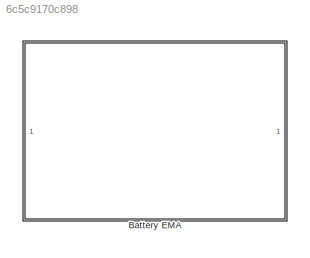
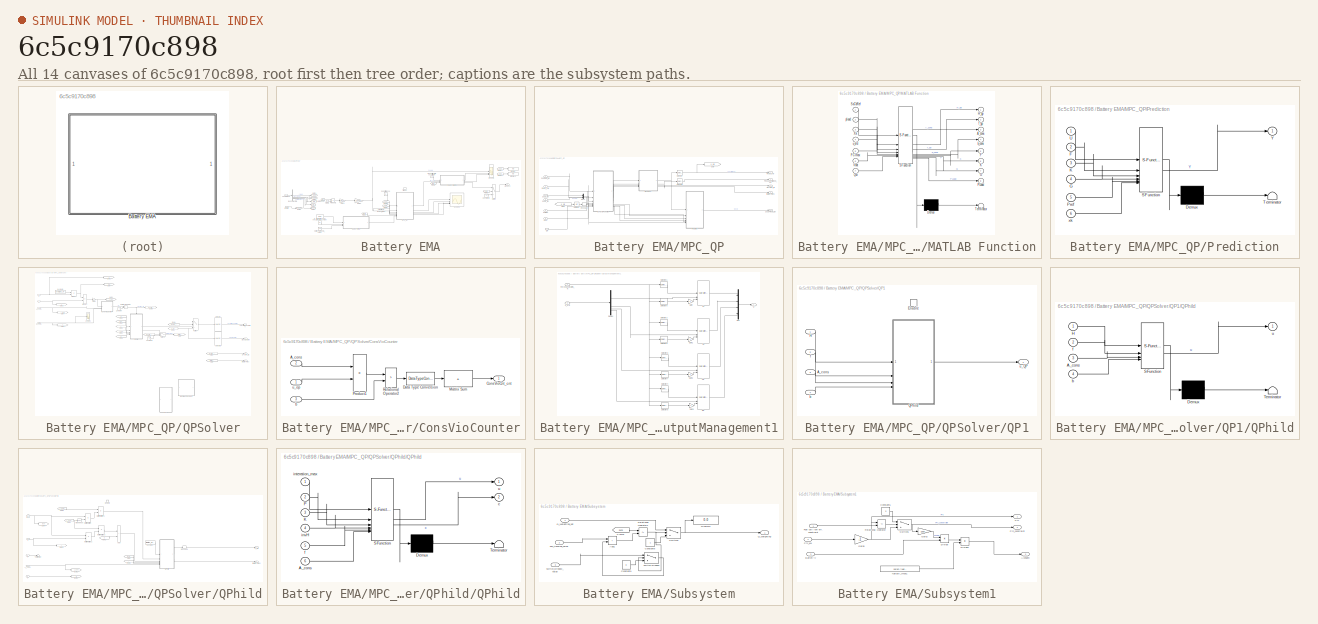
[diagram: thumbnail index - all 14 canvases of the model, root first then tree order]
MODEL slx_6c5c9170c898
KIND model
CONFIG AbsTol = auto
CONFIG EnableMultiTasking = off
CONFIG FixedStep = auto
CONFIG MaxStep = auto
CONFIG MinStep = auto
CONFIG RelTol = 1e-3
CONFIG SampleTimeConstraint = Unconstrained
CONFIG SolverName = VariableStepAuto
CONFIG StartTime = 0.0
CONFIG StopTime = 10.0
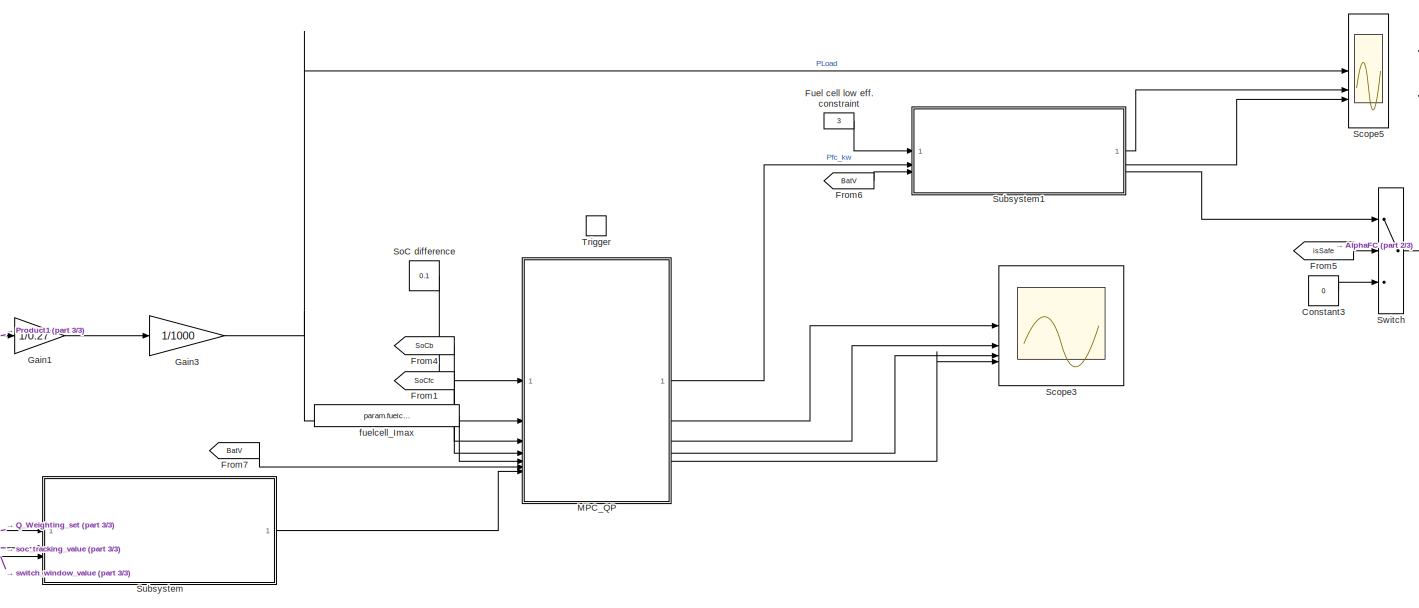
[diagram: Battery EMA - part 1/3, center side, full height]
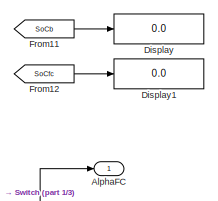
[diagram: Battery EMA - part 2/3, top right region]
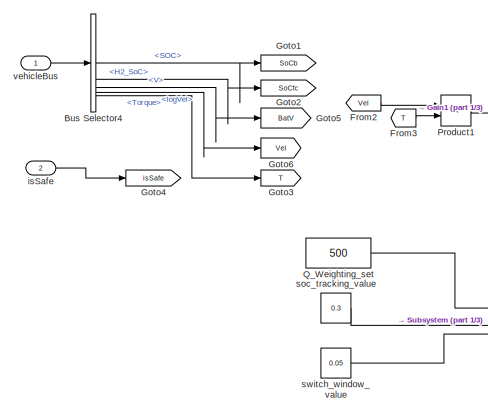
[diagram: Battery EMA - part 3/3, bottom left region]
BLOCK [SubSystem] Battery EMA
BLOCK [Outport] Battery EMA/AlphaFC
BLOCK [BusSelector] Battery EMA/Bus Selector4
  OutputSignals = batteryBus.SOC,rexBus.H2_SoC,batteryBus.V,chassisBus.logVel,chassisControlBus.Torque
BLOCK [Constant] Battery EMA/Constant3
  Value = 0
BLOCK [Display] Battery EMA/Display
  Decimation = 1
BLOCK [Display] Battery EMA/Display1
  Decimation = 1
BLOCK [From] Battery EMA/From1
  GotoTag = SoCfc
BLOCK [From] Battery EMA/From11
  GotoTag = SoCb
BLOCK [From] Battery EMA/From12
  GotoTag = SoCfc
BLOCK [From] Battery EMA/From2
  GotoTag = Vel
BLOCK [From] Battery EMA/From3
  GotoTag = T
BLOCK [From] Battery EMA/From4
  GotoTag = SoCb
BLOCK [From] Battery EMA/From5
  GotoTag = isSafe
BLOCK [From] Battery EMA/From6
  GotoTag = BatV
BLOCK [From] Battery EMA/From7
  GotoTag = BatV
BLOCK [Constant] Battery EMA/Fuel cell low eff. constraint
  Value = 3
BLOCK [Gain] Battery EMA/Gain1
  Gain = 1/0.27
BLOCK [Gain] Battery EMA/Gain3
  Gain = 1/1000
BLOCK [Goto] Battery EMA/Goto1
  GotoTag = SoCb
BLOCK [Goto] Battery EMA/Goto2
  GotoTag = SoCfc
BLOCK [Goto] Battery EMA/Goto3
  GotoTag = T
BLOCK [Goto] Battery EMA/Goto4
  GotoTag = isSafe
BLOCK [Goto] Battery EMA/Goto5
  GotoTag = BatV
BLOCK [Goto] Battery EMA/Goto6
  GotoTag = Vel
BLOCK [SubSystem] Battery EMA/MPC_QP
  AncestorBlock = SOCMPC/Subsystem
  LibrarySourceBlock = SOCMPC/Subsystem
BLOCK [Inport] Battery EMA/MPC_QP/FCImax
  Port = 5
BLOCK [From] Battery EMA/MPC_QP/From
  GotoTag = u_old
BLOCK [Goto] Battery EMA/MPC_QP/Goto
  GotoTag = u_old
BLOCK [Outport] Battery EMA/MPC_QP/IterationTimes
  Port = 4
BLOCK [SubSystem] Battery EMA/MPC_QP/MATLAB Function
  ErrorFcn = Stateflow.Translate.translate
  LibrarySourceBlock = simulink/User-Defined\nFunctions/MATLAB Function
  PermitHierarchicalResolution = ExplicitOnly
  SFBlockType = MATLAB Function
  TreatAsAtomicUnit = on
BLOCK [Demux] Battery EMA/MPC_QP/MATLAB Function/ Demux 
  Outputs = 1
BLOCK [S-Function] Battery EMA/MPC_QP/MATLAB Function/ SFunction 
  EnableBusSupport = on
  FunctionName = sf_sfun
  PortCounts = [7 9]
  SFcnIsStateOwnerBlock = off
  SFunctionDeploymentMode = off
  Tag = Stateflow S-Function 13
BLOCK [Terminator] Battery EMA/MPC_QP/MATLAB Function/ Terminator 
BLOCK [Outport] Battery EMA/MPC_QP/MATLAB Function/A_cons
  Port = 3
BLOCK [Outport] Battery EMA/MPC_QP/MATLAB Function/F
  Port = 5
BLOCK [Inport] Battery EMA/MPC_QP/MATLAB Function/FCImax
  Port = 5
BLOCK [Outport] Battery EMA/MPC_QP/MATLAB Function/G
  Port = 7
BLOCK [Outport] Battery EMA/MPC_QP/MATLAB Function/H_qp
BLOCK [Outport] Battery EMA/MPC_QP/MATLAB Function/K
  Port = 6
BLOCK [Outport] Battery EMA/MPC_QP/MATLAB Function/PLoad
  Port = 8
BLOCK [Inport] Battery EMA/MPC_QP/MATLAB Function/Qw
  Port = 7
BLOCK [Inport] Battery EMA/MPC_QP/MATLAB Function/SoCbRef
BLOCK [Inport] Battery EMA/MPC_QP/MATLAB Function/Vbat
  Port = 6
BLOCK [Inport] Battery EMA/MPC_QP/MATLAB Function/Xk
  Port = 3
BLOCK [Outport] Battery EMA/MPC_QP/MATLAB Function/b_cons
  Port = 4
BLOCK [Outport] Battery EMA/MPC_QP/MATLAB Function/f_qp
  Port = 2
BLOCK [Inport] Battery EMA/MPC_QP/MATLAB Function/pload
  Port = 2
BLOCK [Inport] Battery EMA/MPC_QP/MATLAB Function/u_old
  Port = 4
BLOCK [Mux] Battery EMA/MPC_QP/Mux1
  DisplayOption = bar
  Inputs = 2
BLOCK [Outport] Battery EMA/MPC_QP/PfcNoConstrained_kW
  Port = 2
BLOCK [Outport] Battery EMA/MPC_QP/PfcNo_kW
BLOCK [Inport] Battery EMA/MPC_QP/Pload_kW
  Port = 2
BLOCK [SubSystem] Battery EMA/MPC_QP/Prediction
  ErrorFcn = Stateflow.Translate.translate
  LibrarySourceBlock = simulink/User-Defined\nFunctions/MATLAB Function
  PermitHierarchicalResolution = ExplicitOnly
  SFBlockType = MATLAB Function
  TreatAsAtomicUnit = on
BLOCK [Demux] Battery EMA/MPC_QP/Prediction/ Demux 
  Outputs = 1
BLOCK [S-Function] Battery EMA/MPC_QP/Prediction/ SFunction 
  EnableBusSupport = on
  FunctionName = sf_sfun
  PortCounts = [6 2]
  SFcnIsStateOwnerBlock = off
  SFunctionDeploymentMode = off
  Tag = Stateflow S-Function 17
BLOCK [Terminator] Battery EMA/MPC_QP/Prediction/ Terminator 
BLOCK [Inport] Battery EMA/MPC_QP/Prediction/F
  Port = 2
BLOCK [Inport] Battery EMA/MPC_QP/Prediction/G
  Port = 4
BLOCK [Inport] Battery EMA/MPC_QP/Prediction/K
  Port = 3
BLOCK [Inport] Battery EMA/MPC_QP/Prediction/Pref
  Port = 5
BLOCK [Inport] Battery EMA/MPC_QP/Prediction/U
BLOCK [Outport] Battery EMA/MPC_QP/Prediction/Y
BLOCK [Inport] Battery EMA/MPC_QP/Prediction/xk
  Port = 6
BLOCK [Outport] Battery EMA/MPC_QP/QPActive_flg
  Port = 3
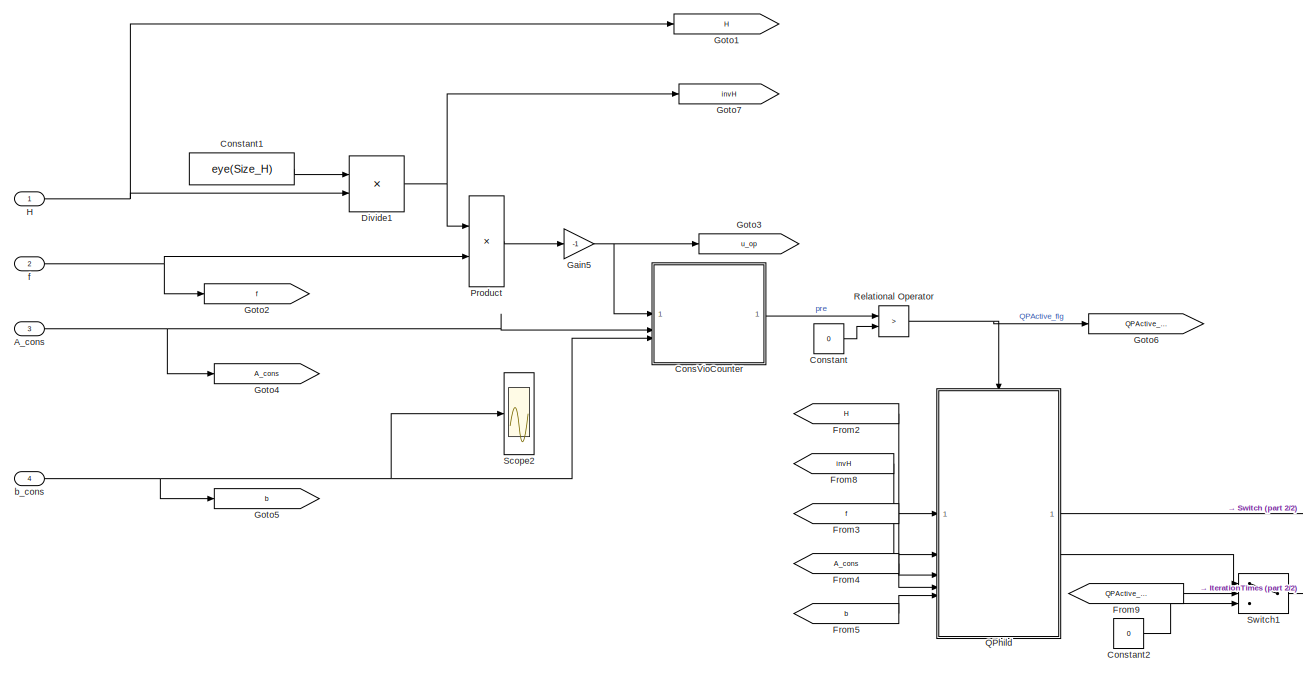
[diagram: Battery EMA/MPC_QP/QPSolver - part 1/2, top left region]
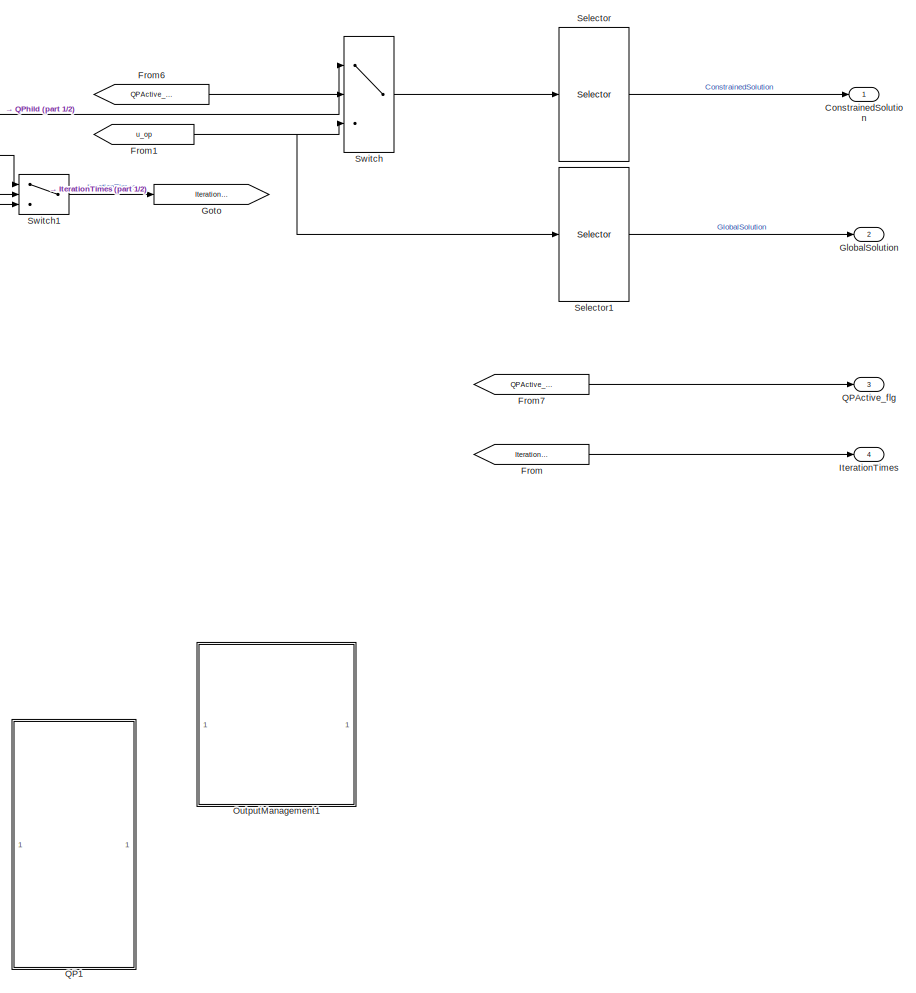
[diagram: Battery EMA/MPC_QP/QPSolver - part 2/2, middle right region]
BLOCK [SubSystem] Battery EMA/MPC_QP/QPSolver
BLOCK [Inport] Battery EMA/MPC_QP/QPSolver/A_cons
  Port = 3
BLOCK [SubSystem] Battery EMA/MPC_QP/QPSolver/ConsVioCounter
BLOCK [Inport] Battery EMA/MPC_QP/QPSolver/ConsVioCounter/A_cons
  Port = 2
BLOCK [Outport] Battery EMA/MPC_QP/QPSolver/ConsVioCounter/ConsVioCnt_cnt
BLOCK [DataTypeConversion] Battery EMA/MPC_QP/QPSolver/ConsVioCounter/Data Type Conversion
  OutDataTypeStr = uint8
  RndMeth = Floor
  SaturateOnIntegerOverflow = off
BLOCK [Sum] Battery EMA/MPC_QP/QPSolver/ConsVioCounter/Matrix Sum
  IconShape = rectangular
  Inputs = +
BLOCK [Product] Battery EMA/MPC_QP/QPSolver/ConsVioCounter/Product1
  Multiplication = Matrix(*)
BLOCK [RelationalOperator] Battery EMA/MPC_QP/QPSolver/ConsVioCounter/Relational Operator2
  InputSameDT = off
  Operator = >
  OutDataTypeStr = boolean
  RndMeth = Simplest
BLOCK [Inport] Battery EMA/MPC_QP/QPSolver/ConsVioCounter/b
  Port = 3
BLOCK [Inport] Battery EMA/MPC_QP/QPSolver/ConsVioCounter/u_op
BLOCK [Constant] Battery EMA/MPC_QP/QPSolver/Constant
  Value = 0
BLOCK [Constant] Battery EMA/MPC_QP/QPSolver/Constant1
  Value = eye(Size_H)
BLOCK [Constant] Battery EMA/MPC_QP/QPSolver/Constant2
  Value = 0
BLOCK [Outport] Battery EMA/MPC_QP/QPSolver/ConstrainedSolution
BLOCK [Product] Battery EMA/MPC_QP/QPSolver/Divide1
  Inputs = */
  Multiplication = Matrix(*)
BLOCK [From] Battery EMA/MPC_QP/QPSolver/From
  GotoTag = IterationTimes
BLOCK [From] Battery EMA/MPC_QP/QPSolver/From1
  GotoTag = u_op
BLOCK [From] Battery EMA/MPC_QP/QPSolver/From2
  GotoTag = H
BLOCK [From] Battery EMA/MPC_QP/QPSolver/From3
  GotoTag = f
BLOCK [From] Battery EMA/MPC_QP/QPSolver/From4
  GotoTag = A_cons
BLOCK [From] Battery EMA/MPC_QP/QPSolver/From5
  GotoTag = b
BLOCK [From] Battery EMA/MPC_QP/QPSolver/From6
  GotoTag = QPActive_flg
BLOCK [From] Battery EMA/MPC_QP/QPSolver/From7
  GotoTag = QPActive_flg
BLOCK [From] Battery EMA/MPC_QP/QPSolver/From8
  GotoTag = invH
BLOCK [From] Battery EMA/MPC_QP/QPSolver/From9
  GotoTag = QPActive_flg
BLOCK [Gain] Battery EMA/MPC_QP/QPSolver/Gain5
  Gain = -1
BLOCK [Outport] Battery EMA/MPC_QP/QPSolver/GlobalSolution
  Port = 2
BLOCK [Goto] Battery EMA/MPC_QP/QPSolver/Goto
  GotoTag = IterationTimes
BLOCK [Goto] Battery EMA/MPC_QP/QPSolver/Goto1
  GotoTag = H
BLOCK [Goto] Battery EMA/MPC_QP/QPSolver/Goto2
  GotoTag = f
BLOCK [Goto] Battery EMA/MPC_QP/QPSolver/Goto3
  GotoTag = u_op
BLOCK [Goto] Battery EMA/MPC_QP/QPSolver/Goto4
  GotoTag = A_cons
BLOCK [Goto] Battery EMA/MPC_QP/QPSolver/Goto5
  GotoTag = b
BLOCK [Goto] Battery EMA/MPC_QP/QPSolver/Goto6
  GotoTag = QPActive_flg
BLOCK [Goto] Battery EMA/MPC_QP/QPSolver/Goto7
  GotoTag = invH
BLOCK [Inport] Battery EMA/MPC_QP/QPSolver/H
BLOCK [Outport] Battery EMA/MPC_QP/QPSolver/IterationTimes
  Port = 4
BLOCK [SubSystem] Battery EMA/MPC_QP/QPSolver/OutputManagement1
  Commented = on
BLOCK [Demux] Battery EMA/MPC_QP/QPSolver/OutputManagement1/Demux
BLOCK [Reference] Battery EMA/MPC_QP/QPSolver/OutputManagement1/FL  REF=simulink/Discontinuities/Saturation
Dynamic
  SourceBlock = simulink/Discontinuities/Saturation\nDynamic
  SourceType = Saturation Dynamic
BLOCK [Reference] Battery EMA/MPC_QP/QPSolver/OutputManagement1/FR  REF=simulink/Discontinuities/Saturation
Dynamic
  SourceBlock = simulink/Discontinuities/Saturation\nDynamic
  SourceType = Saturation Dynamic
BLOCK [Inport] Battery EMA/MPC_QP/QPSolver/OutputManagement1/ForceConstraints_N
BLOCK [Gain] Battery EMA/MPC_QP/QPSolver/OutputManagement1/Gain
  Gain = -1
BLOCK [Gain] Battery EMA/MPC_QP/QPSolver/OutputManagement1/Gain1
  Gain = -1
BLOCK [Gain] Battery EMA/MPC_QP/QPSolver/OutputManagement1/Gain2
  Gain = -1
BLOCK [Gain] Battery EMA/MPC_QP/QPSolver/OutputManagement1/Gain3
  Gain = -1
BLOCK [Mux] Battery EMA/MPC_QP/QPSolver/OutputManagement1/Mux
  DisplayOption = bar
  Inputs = [1 1 1 1]
BLOCK [Reference] Battery EMA/MPC_QP/QPSolver/OutputManagement1/RL  REF=simulink/Discontinuities/Saturation
Dynamic
  SourceBlock = simulink/Discontinuities/Saturation\nDynamic
  SourceType = Saturation Dynamic
BLOCK [Reference] Battery EMA/MPC_QP/QPSolver/OutputManagement1/RR  REF=simulink/Discontinuities/Saturation
Dynamic
  SourceBlock = simulink/Discontinuities/Saturation\nDynamic
  SourceType = Saturation Dynamic
BLOCK [Selector] Battery EMA/MPC_QP/QPSolver/OutputManagement1/Selector1
  IndexOptions = Index vector (dialog)
  Indices = [5]
  InputPortWidth = 8
  OutputSizes = 1
BLOCK [Selector] Battery EMA/MPC_QP/QPSolver/OutputManagement1/Selector2
  IndexOptions = Index vector (dialog)
  Indices = 6
  InputPortWidth = 8
  OutputSizes = 1
BLOCK [Selector] Battery EMA/MPC_QP/QPSolver/OutputManagement1/Selector3
  IndexOptions = Index vector (dialog)
  Indices = 7
  InputPortWidth = 8
  OutputSizes = 1
BLOCK [Selector] Battery EMA/MPC_QP/QPSolver/OutputManagement1/Selector4
  IndexOptions = Index vector (dialog)
  Indices = 8
  InputPortWidth = 8
  OutputSizes = 1
BLOCK [Selector] Battery EMA/MPC_QP/QPSolver/OutputManagement1/Selector5
  IndexOptions = Index vector (dialog)
  Indices = 1
  InputPortWidth = 8
  OutputSizes = 1
BLOCK [Selector] Battery EMA/MPC_QP/QPSolver/OutputManagement1/Selector6
  IndexOptions = Index vector (dialog)
  Indices = 2
  InputPortWidth = 8
  OutputSizes = 1
BLOCK [Selector] Battery EMA/MPC_QP/QPSolver/OutputManagement1/Selector7
  IndexOptions = Index vector (dialog)
  Indices = 3
  InputPortWidth = 8
  OutputSizes = 1
BLOCK [Selector] Battery EMA/MPC_QP/QPSolver/OutputManagement1/Selector8
  IndexOptions = Index vector (dialog)
  Indices = 4
  InputPortWidth = 8
  OutputSizes = 1
BLOCK [Outport] Battery EMA/MPC_QP/QPSolver/OutputManagement1/u
BLOCK [Inport] Battery EMA/MPC_QP/QPSolver/OutputManagement1/u_pre
  Port = 2
BLOCK [Product] Battery EMA/MPC_QP/QPSolver/Product
  Multiplication = Matrix(*)
BLOCK [SubSystem] Battery EMA/MPC_QP/QPSolver/QP1
  Commented = on
BLOCK [Inport] Battery EMA/MPC_QP/QPSolver/QP1/A_cons
  Port = 3
BLOCK [EnablePort] Battery EMA/MPC_QP/QPSolver/QP1/Enable
BLOCK [Inport] Battery EMA/MPC_QP/QPSolver/QP1/H
BLOCK [SubSystem] Battery EMA/MPC_QP/QPSolver/QP1/QPhild
  ErrorFcn = Stateflow.Translate.translate
  PermitHierarchicalResolution = ExplicitOnly
  SFBlockType = MATLAB Function
  TreatAsAtomicUnit = on
BLOCK [Demux] Battery EMA/MPC_QP/QPSolver/QP1/QPhild/ Demux 
  Outputs = 1
BLOCK [S-Function] Battery EMA/MPC_QP/QPSolver/QP1/QPhild/ SFunction 
  EnableBusSupport = on
  FunctionName = sf_sfun
  PortCounts = [4 2]
  SFcnIsStateOwnerBlock = off
  SFunctionDeploymentMode = off
  Tag = Stateflow S-Function 14
BLOCK [Terminator] Battery EMA/MPC_QP/QPSolver/QP1/QPhild/ Terminator 
BLOCK [Inport] Battery EMA/MPC_QP/QPSolver/QP1/QPhild/A_cons
  Port = 3
BLOCK [Inport] Battery EMA/MPC_QP/QPSolver/QP1/QPhild/H
BLOCK [Inport] Battery EMA/MPC_QP/QPSolver/QP1/QPhild/b
  Port = 4
BLOCK [Inport] Battery EMA/MPC_QP/QPSolver/QP1/QPhild/f
  Port = 2
BLOCK [Outport] Battery EMA/MPC_QP/QPSolver/QP1/QPhild/u
BLOCK [Inport] Battery EMA/MPC_QP/QPSolver/QP1/b
  Port = 4
BLOCK [Inport] Battery EMA/MPC_QP/QPSolver/QP1/f
  Port = 2
BLOCK [Outport] Battery EMA/MPC_QP/QPSolver/QP1/u_QP
BLOCK [Outport] Battery EMA/MPC_QP/QPSolver/QPActive_flg
  Port = 3
BLOCK [SubSystem] Battery EMA/MPC_QP/QPSolver/QPhild
BLOCK [Inport] Battery EMA/MPC_QP/QPSolver/QPhild/A_cons
  Port = 4
BLOCK [Sum] Battery EMA/MPC_QP/QPSolver/QPhild/Add
  IconShape = rectangular
BLOCK [Constant] Battery EMA/MPC_QP/QPSolver/QPhild/Constant
  Value = iteration_max
BLOCK [EnablePort] Battery EMA/MPC_QP/QPSolver/QPhild/Enable
BLOCK [From] Battery EMA/MPC_QP/QPSolver/QPhild/From
  GotoTag = invH
BLOCK [From] Battery EMA/MPC_QP/QPSolver/QPhild/From1
  GotoTag = A_cons
BLOCK [From] Battery EMA/MPC_QP/QPSolver/QPhild/From2
  GotoTag = A_cons
BLOCK [From] Battery EMA/MPC_QP/QPSolver/QPhild/From3
  GotoTag = f
BLOCK [From] Battery EMA/MPC_QP/QPSolver/QPhild/From6
  GotoTag = b
BLOCK [Goto] Battery EMA/MPC_QP/QPSolver/QPhild/Goto1
  GotoTag = f
BLOCK [Goto] Battery EMA/MPC_QP/QPSolver/QPhild/Goto2
  GotoTag = A_cons
BLOCK [Goto] Battery EMA/MPC_QP/QPSolver/QPhild/Goto3
  GotoTag = b
BLOCK [Goto] Battery EMA/MPC_QP/QPSolver/QPhild/Goto4
  GotoTag = invH
BLOCK [Inport] Battery EMA/MPC_QP/QPSolver/QPhild/H
  PortDimensions = [Size_H,Size_H]
BLOCK [Outport] Battery EMA/MPC_QP/QPSolver/QPhild/IterationTimes
  Port = 2
  PortDimensions = [1,1]
BLOCK [Product] Battery EMA/MPC_QP/QPSolver/QPhild/Matrix Multiply
  Multiplication = Matrix(*)
BLOCK [Product] Battery EMA/MPC_QP/QPSolver/QPhild/Matrix Multiply1
  Multiplication = Matrix(*)
BLOCK [Product] Battery EMA/MPC_QP/QPSolver/QPhild/Matrix Multiply2
  Multiplication = Matrix(*)
BLOCK [Product] Battery EMA/MPC_QP/QPSolver/QPhild/Matrix Multiply3
  Multiplication = Matrix(*)
BLOCK [SubSystem] Battery EMA/MPC_QP/QPSolver/QPhild/QPhild
  ErrorFcn = Stateflow.Translate.translate
  PermitHierarchicalResolution = ExplicitOnly
  SFBlockType = MATLAB Function
  TreatAsAtomicUnit = on
BLOCK [Demux] Battery EMA/MPC_QP/QPSolver/QPhild/QPhild/ Demux 
  Outputs = 1
BLOCK [S-Function] Battery EMA/MPC_QP/QPSolver/QPhild/QPhild/ SFunction 
  EnableBusSupport = on
  FunctionName = sf_sfun
  PortCounts = [6 3]
  SFcnIsStateOwnerBlock = off
  SFunctionDeploymentMode = off
  Tag = Stateflow S-Function 15
BLOCK [Terminator] Battery EMA/MPC_QP/QPSolver/QPhild/QPhild/ Terminator 
BLOCK [Inport] Battery EMA/MPC_QP/QPSolver/QPhild/QPhild/A_cons
  Port = 6
BLOCK [Inport] Battery EMA/MPC_QP/QPSolver/QPhild/QPhild/K
  Port = 3
BLOCK [Inport] Battery EMA/MPC_QP/QPSolver/QPhild/QPhild/P
  Port = 2
BLOCK [Outport] Battery EMA/MPC_QP/QPSolver/QPhild/QPhild/c
  Port = 2
BLOCK [Inport] Battery EMA/MPC_QP/QPSolver/QPhild/QPhild/f
  Port = 5
BLOCK [Inport] Battery EMA/MPC_QP/QPSolver/QPhild/QPhild/interation_max
BLOCK [Inport] Battery EMA/MPC_QP/QPSolver/QPhild/QPhild/invH
  Port = 4
BLOCK [Outport] Battery EMA/MPC_QP/QPSolver/QPhild/QPhild/u
BLOCK [Reshape] Battery EMA/MPC_QP/QPSolver/QPhild/Reshape
  OutputDimensionality = Column vector (2-D)
BLOCK [Terminator] Battery EMA/MPC_QP/QPSolver/QPhild/Terminator
BLOCK [Math] Battery EMA/MPC_QP/QPSolver/QPhild/Transpose
  Operator = transpose
  SignedPower = on
BLOCK [Inport] Battery EMA/MPC_QP/QPSolver/QPhild/b
  Port = 5
BLOCK [Inport] Battery EMA/MPC_QP/QPSolver/QPhild/f
  Port = 3
  PortDimensions = [Size_H,1]
BLOCK [Inport] Battery EMA/MPC_QP/QPSolver/QPhild/invH
  Port = 2
  PortDimensions = [Size_H,Size_H]
BLOCK [Outport] Battery EMA/MPC_QP/QPSolver/QPhild/u_QP
  PortDimensions = [Size_H,1]
BLOCK [RelationalOperator] Battery EMA/MPC_QP/QPSolver/Relational Operator
  InputSameDT = off
  Operator = >
  OutDataTypeStr = boolean
  RndMeth = Simplest
BLOCK [Scope] Battery EMA/MPC_QP/QPSolver/Scope2
  Floating = off
  NumInputPorts = 1
  ScopeSpecificationString = Simulink.scopes.TimeScopeBlockCfg('CurrentConfiguration', extmgr.ConfigurationSet(extmgr.Configuration('Core','General UI',true),extmgr.Configuration('Core','Source UI',true),extmgr.Configuration('Sources','WiredSimulink',true,'DataLoggingVariableName','ScopeData10'),extmgr.Configuration('Visuals','Time Domain',true,'SerializedDisplays',{struct('MinYLimReal','140.00000','MaxYLimReal','340.00000','...<+1617ch>
BLOCK [Selector] Battery EMA/MPC_QP/QPSolver/Selector
  IndexOptions = Index vector (dialog)
  Indices = [1:N_u]
  OutputSizes = 1
BLOCK [Selector] Battery EMA/MPC_QP/QPSolver/Selector1
  IndexOptions = Index vector (dialog)
  Indices = [1:N_u]
  OutputSizes = 1
BLOCK [Switch] Battery EMA/MPC_QP/QPSolver/Switch
  Criteria = u2 ~= 0
  InputSameDT = off
  SaturateOnIntegerOverflow = off
BLOCK [Switch] Battery EMA/MPC_QP/QPSolver/Switch1
  Criteria = u2 ~= 0
  InputSameDT = off
  SaturateOnIntegerOverflow = off
BLOCK [Inport] Battery EMA/MPC_QP/QPSolver/b_cons
  Port = 4
BLOCK [Inport] Battery EMA/MPC_QP/QPSolver/f
  Port = 2
BLOCK [Inport] Battery EMA/MPC_QP/Qw
  Port = 7
BLOCK [Reshape] Battery EMA/MPC_QP/Reshape
  OutputDimensionality = Column vector (2-D)
BLOCK [Selector] Battery EMA/MPC_QP/Selector
  IndexOptions = Index vector (dialog)
  Indices = 1
  OutputSizes = 1
BLOCK [Selector] Battery EMA/MPC_QP/Selector1
  IndexOptions = Index vector (dialog)
  Indices = 1
  OutputSizes = 1
BLOCK [Outport] Battery EMA/MPC_QP/SoCbPredict_rat
  Port = 5
BLOCK [Inport] Battery EMA/MPC_QP/SoCbRef_rat
BLOCK [Inport] Battery EMA/MPC_QP/SoCb_rat
  Port = 3
BLOCK [Inport] Battery EMA/MPC_QP/SoCfc_rat
  Port = 4
BLOCK [UnitDelay] Battery EMA/MPC_QP/Unit Delay
  HasFrameUpgradeWarning = on
  SampleTime = -1
BLOCK [Inport] Battery EMA/MPC_QP/Vbat
  Port = 6
BLOCK [Product] Battery EMA/Product1
BLOCK [Constant] Battery EMA/Q_Weighting_set
  Value = 500
BLOCK [Scope] Battery EMA/Scope3
  Floating = off
  NumInputPorts = 4
  ScopeSpecificationString = Simulink.scopes.TimeScopeBlockCfg('CurrentConfiguration', extmgr.ConfigurationSet(extmgr.Configuration('Core','General UI',true),extmgr.Configuration('Core','Source UI',true),extmgr.Configuration('Sources','WiredSimulink',true,'DataLoggingVariableName','ScopeData1'),extmgr.Configuration('Visuals','Time Domain',true,'SerializedDisplays',{struct('MinYLimReal','-29.3675','MaxYLimReal','23.75659','YLa...<+3609ch>
BLOCK [Scope] Battery EMA/Scope5
  Floating = off
  NumInputPorts = 3
  ScopeSpecificationString = Simulink.scopes.TimeScopeBlockCfg('CurrentConfiguration', extmgr.ConfigurationSet(extmgr.Configuration('Core','General UI',true),extmgr.Configuration('Core','Source UI',true),extmgr.Configuration('Sources','WiredSimulink',true,'DataLoggingVariableName','ScopeData2'),extmgr.Configuration('Visuals','Time Domain',true,'SerializedDisplays',{struct('MinYLimReal','-43.00858','MaxYLimReal','31.81944','YL...<+1514ch>
BLOCK [Constant] Battery EMA/SoC difference
  Value = 0.1
BLOCK [SubSystem] Battery EMA/Subsystem
BLOCK [Sum] Battery EMA/Subsystem/Add1
  IconShape = rectangular
BLOCK [Constant] Battery EMA/Subsystem/Constant6
BLOCK [Constant] Battery EMA/Subsystem/Constant9
  Value = 0
BLOCK [Display] Battery EMA/Subsystem/Display3
  Decimation = 1
BLOCK [From] Battery EMA/Subsystem/From9
  GotoTag = SoCb
BLOCK [Outport] Battery EMA/Subsystem/Q_Weighting
BLOCK [Inport] Battery EMA/Subsystem/Q_Weighting_set
BLOCK [RelationalOperator] Battery EMA/Subsystem/Relational Operator1
  InputSameDT = off
  Operator = <=
  OutDataTypeStr = boolean
  RndMeth = Simplest
BLOCK [Switch] Battery EMA/Subsystem/Switch2
  Criteria = u2 > Threshold
  InputSameDT = off
  SaturateOnIntegerOverflow = off
BLOCK [Inport] Battery EMA/Subsystem/soc_tracking_value
  Port = 2
BLOCK [Switch] Battery EMA/Subsystem/switch window
  Criteria = u2 > Threshold
  InputSameDT = off
  SaturateOnIntegerOverflow = off
BLOCK [Inport] Battery EMA/Subsystem/switch_window_value
  Port = 3
BLOCK [SubSystem] Battery EMA/Subsystem1
BLOCK [Outport] Battery EMA/Subsystem1/AlphaFC
  Port = 3
BLOCK [Inport] Battery EMA/Subsystem1/Battery V
  Port = 3
BLOCK [Constant] Battery EMA/Subsystem1/Constant5
  Value = 0
BLOCK [Product] Battery EMA/Subsystem1/Divide
  Inputs = */
BLOCK [Product] Battery EMA/Subsystem1/Divide1
  Inputs = */
BLOCK [Inport] Battery EMA/Subsystem1/Fuel cell low eff. constraint
BLOCK [Gain] Battery EMA/Subsystem1/Gain2
  Gain = 1000
BLOCK [Gain] Battery EMA/Subsystem1/Gain5
  Gain = -1
BLOCK [Outport] Battery EMA/Subsystem1/Pfc
BLOCK [Outport] Battery EMA/Subsystem1/Pfc_constraint
  Port = 2
BLOCK [Inport] Battery EMA/Subsystem1/Pfc_kw
  Port = 2
BLOCK [RelationalOperator] Battery EMA/Subsystem1/Relational Operator
  InputSameDT = off
  Operator = <=
  OutDataTypeStr = boolean
  RndMeth = Simplest
BLOCK [Switch] Battery EMA/Subsystem1/Switch1
  Criteria = u2 > Threshold
  InputSameDT = off
  SaturateOnIntegerOverflow = off
BLOCK [Constant] Battery EMA/Subsystem1/fuelcell_Imax1
  Value = param.fuelcell.Imax
BLOCK [Switch] Battery EMA/Switch
  Criteria = u2 ~= 0
  InputSameDT = off
  SaturateOnIntegerOverflow = off
BLOCK [TriggerPort] Battery EMA/Trigger
  PortDimensions = 1
  StatesWhenEnabling = held
  TriggerType = function-call
  VariantControl = (inherit)
BLOCK [Constant] Battery EMA/fuelcell_Imax
  Value = param.fuelcell.Imax
BLOCK [Inport] Battery EMA/isSafe
  Port = 2
BLOCK [Constant] Battery EMA/soc_tracking_value
  Value = 0.3
BLOCK [Constant] Battery EMA/switch_window_value
  Value = 0.05
BLOCK [Inport] Battery EMA/vehicleBus
LINE Battery EMA/Bus Selector4:1 -> Battery EMA/Goto1:1
LINE Battery EMA/Bus Selector4:2 -> Battery EMA/Goto2:1
LINE Battery EMA/Bus Selector4:3 -> Battery EMA/Goto5:1
LINE Battery EMA/Bus Selector4:4 -> Battery EMA/Goto6:1
LINE Battery EMA/Bus Selector4:5 -> Battery EMA/Goto3:1
LINE Battery EMA/Constant3:1 -> Battery EMA/Switch:3
LINE Battery EMA/From11:1 -> Battery EMA/Display:1
LINE Battery EMA/From12:1 -> Battery EMA/Display1:1
LINE Battery EMA/From1:1 -> Battery EMA/MPC_QP:4
LINE Battery EMA/From2:1 -> Battery EMA/Product1:1
LINE Battery EMA/From3:1 -> Battery EMA/Product1:2
LINE Battery EMA/From4:1 -> Battery EMA/MPC_QP:3
LINE Battery EMA/From5:1 -> Battery EMA/Switch:2
LINE Battery EMA/From6:1 -> Battery EMA/Subsystem1:3
LINE Battery EMA/From7:1 -> Battery EMA/MPC_QP:6
LINE Battery EMA/Fuel cell low eff. constraint:1 -> Battery EMA/Subsystem1:1
LINE Battery EMA/Gain1:1 -> Battery EMA/Gain3:1
NET Battery EMA/Gain3:1 -> Battery EMA/MPC_QP:2, Battery EMA/Scope5:1
LINE Battery EMA/MPC_QP:1 -> Battery EMA/Subsystem1:2
LINE Battery EMA/MPC_QP:2 -> Battery EMA/Scope3:1
LINE Battery EMA/MPC_QP:3 -> Battery EMA/Scope3:2
LINE Battery EMA/MPC_QP:4 -> Battery EMA/Scope3:3
LINE Battery EMA/MPC_QP:5 -> Battery EMA/Scope3:4
LINE Battery EMA/Product1:1 -> Battery EMA/Gain1:1
LINE Battery EMA/Q_Weighting_set:1 -> Battery EMA/Subsystem:1
LINE Battery EMA/SoC difference:1 -> Battery EMA/MPC_QP:1
LINE Battery EMA/Subsystem/Add1:1 -> Battery EMA/Subsystem/Relational Operator1:2
LINE Battery EMA/Subsystem/Constant6:1 -> Battery EMA/Subsystem/Switch2:3
LINE Battery EMA/Subsystem/Constant9:1 -> Battery EMA/Subsystem/switch window:3
LINE Battery EMA/Subsystem/From9:1 -> Battery EMA/Subsystem/Relational Operator1:1
LINE Battery EMA/Subsystem/Q_Weighting_set:1 -> Battery EMA/Subsystem/Switch2:1
NET Battery EMA/Subsystem/Relational Operator1:1 -> Battery EMA/Subsystem/Switch2:2, Battery EMA/Subsystem/switch window:2
NET Battery EMA/Subsystem/Switch2:1 -> Battery EMA/Subsystem/Display3:1, Battery EMA/Subsystem/Q_Weighting:1
LINE Battery EMA/Subsystem/soc_tracking_value:1 -> Battery EMA/Subsystem/Add1:1
LINE Battery EMA/Subsystem/switch window:1 -> Battery EMA/Subsystem/Add1:2
LINE Battery EMA/Subsystem/switch_window_value:1 -> Battery EMA/Subsystem/switch window:1
LINE Battery EMA/Subsystem1/Battery V:1 -> Battery EMA/Subsystem1/Divide:2
LINE Battery EMA/Subsystem1/Constant5:1 -> Battery EMA/Subsystem1/Switch1:1
LINE Battery EMA/Subsystem1/Divide1:1 -> Battery EMA/Subsystem1/AlphaFC:1
LINE Battery EMA/Subsystem1/Divide:1 -> Battery EMA/Subsystem1/Divide1:1
LINE Battery EMA/Subsystem1/Fuel cell low eff. constraint:1 -> Battery EMA/Subsystem1/Relational Operator:2
LINE Battery EMA/Subsystem1/Gain2:1 -> Battery EMA/Subsystem1/Divide:1
NET Battery EMA/Subsystem1/Gain5:1 -> Battery EMA/Subsystem1/Pfc:1, Battery EMA/Subsystem1/Relational Operator:1, Battery EMA/Subsystem1/Switch1:3
LINE Battery EMA/Subsystem1/Pfc_kw:1 -> Battery EMA/Subsystem1/Gain5:1
LINE Battery EMA/Subsystem1/Relational Operator:1 -> Battery EMA/Subsystem1/Switch1:2
NET Battery EMA/Subsystem1/Switch1:1 -> Battery EMA/Subsystem1/Gain2:1, Battery EMA/Subsystem1/Pfc_constraint:1
LINE Battery EMA/Subsystem1/fuelcell_Imax1:1 -> Battery EMA/Subsystem1/Divide1:2
LINE Battery EMA/Subsystem1:1 -> Battery EMA/Scope5:2
LINE Battery EMA/Subsystem1:2 -> Battery EMA/Scope5:3
LINE Battery EMA/Subsystem1:3 -> Battery EMA/Switch:1
LINE Battery EMA/Subsystem:1 -> Battery EMA/MPC_QP:7
LINE Battery EMA/Switch:1 -> Battery EMA/AlphaFC:1
LINE Battery EMA/fuelcell_Imax:1 -> Battery EMA/MPC_QP:5
LINE Battery EMA/isSafe:1 -> Battery EMA/Goto4:1
LINE Battery EMA/soc_tracking_value:1 -> Battery EMA/Subsystem:2
LINE Battery EMA/switch_window_value:1 -> Battery EMA/Subsystem:3
LINE Battery EMA/vehicleBus:1 -> Battery EMA/Bus Selector4:1
note: NET lines group one-source signal fan-out (src -> all destinations, sorted); 1:1 wires keep LINE
CHART Battery EMA/MPC_QP/MATLAB Function states=1 transitions=1
  STATE_LABEL 'eML_blk_kernel()'
  STATE_LABEL 'SCRIPT:\nfunction [H_qp,f_qp,A_cons,b_cons,F,K,G,PLoad] = fcn(SoCbRef,pload,Xk,u_old,FCImax,Vbat,Qw)\n\n%% Initialzization\n\n% xk: SoC當下\n% pload: demand power\n% SoCbRef: 電池目標Soc\n\n\n% vehicle parameters\n\nC_b = 20; % 額定電池容量kwh\nC_FC = 20; % 額定燃料電池容量kwh\n\n% Prediction horizon /Control horizon/ Sample time\nNp = 7;\nNc = 3;\nTs = 0.01;\n\n% discretization\nAd = eye(2);\nBd = [-Ts/C_b/3600;\n    Ts/C_FC/3600];\nDd=[Ts...<+2287ch>'
CHART Battery EMA/MPC_QP/QPSolver/QP1/QPhild states=1 transitions=1
  STATE_LABEL 'eML_blk_kernel()'
  STATE_LABEL "SCRIPT:\nfunction u  = QPhild(H,f,A_cons,b)\n\n%% Procedure start\nP=A_cons*(H\\A_cons');\nK=(A_cons*(H\\f)+b);\n\n[n,m]=size(K);  % n is the number of the constraints.\nx_ini=zeros(n,m);\nlambda=x_ini;\nal=10;\ninteration_max = 10;\n\nfor km=1:interation_max\n%     find the elements in the solution vector one by one\n%     km could be larger if the Lagranger multiplier has a slow\n%     convergence rate.\n    \n    ...<+278ch>"
CHART Battery EMA/MPC_QP/QPSolver/QPhild/QPhild states=1 transitions=1
  STATE_LABEL 'eML_blk_kernel()'
  STATE_LABEL 'SCRIPT:\n    function [u,c]  = QPhild(interation_max,P,K,invH,f,A_cons)\n%% Procedure start\n[n,m]=size(K);  % n is the number of the constraints.\nx_ini=zeros(n,m);\nlambda=x_ini;\nal=10;\nc=0;\nfor km=1:interation_max\n    c=c+1;\n%     find the elements in the solution vector one by one\n%     km could be larger if the Lagranger multiplier has a slow\n%     convergence rate.\n    \n    lambda_p=lambda;\n    \n...<+259ch>'
CHART Battery EMA/MPC_QP/Prediction states=1 transitions=1
  STATE_LABEL 'eML_blk_kernel()'
  STATE_LABEL 'SCRIPT:\nfunction Y = fcn(U,F,K,G,Pref,xk)\n\n\n\nY=F*xk+K*U+G*Pref;\n\n'
CHART  states=0 transitions=0
CHART  states=0 transitions=0
CHART  states=0 transitions=0
CHART  states=0 transitions=0
